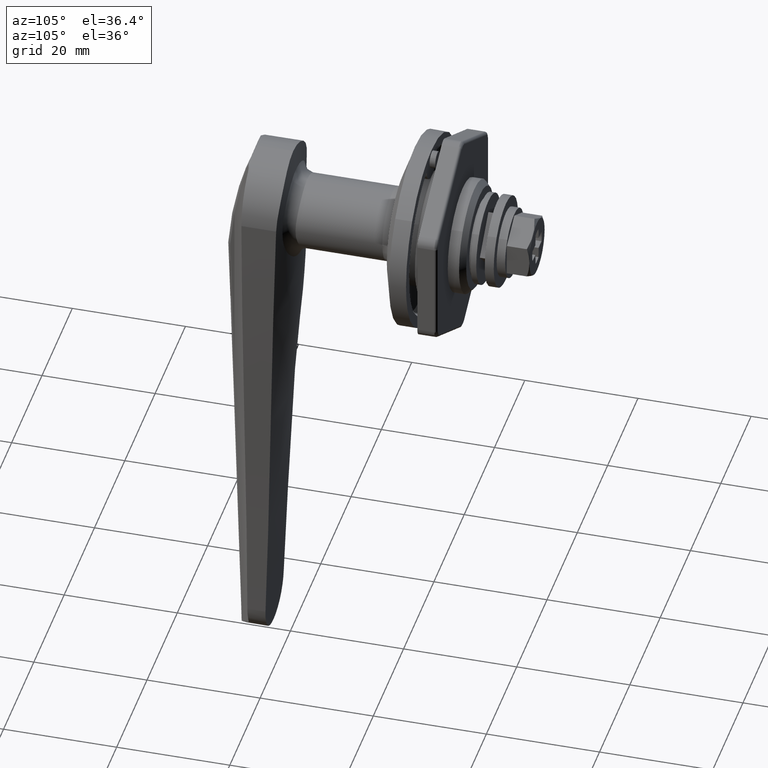
[diagram: clean part render]
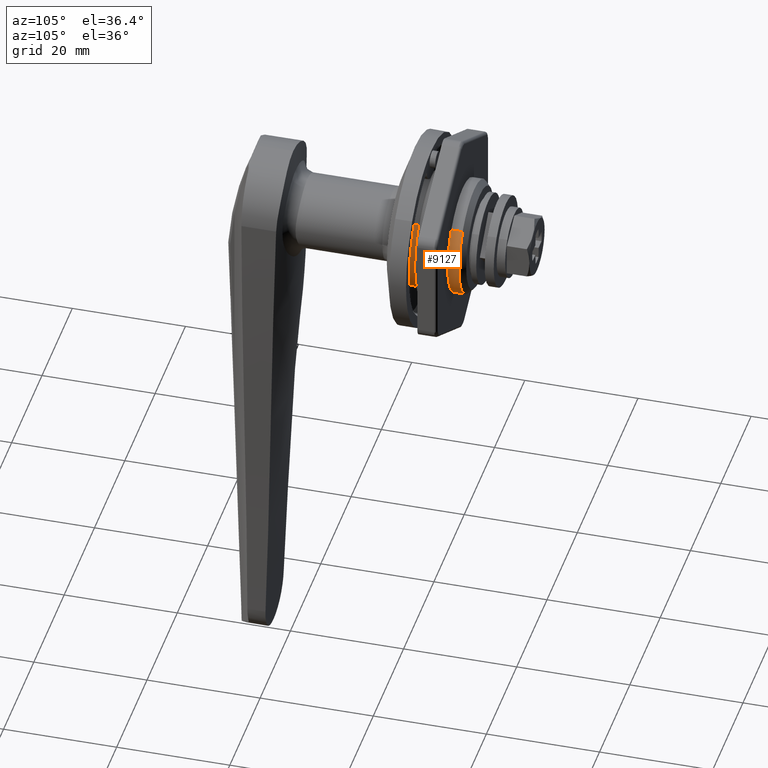
[diagram: same view with one face highlighted and labeled with its STEP entity id]
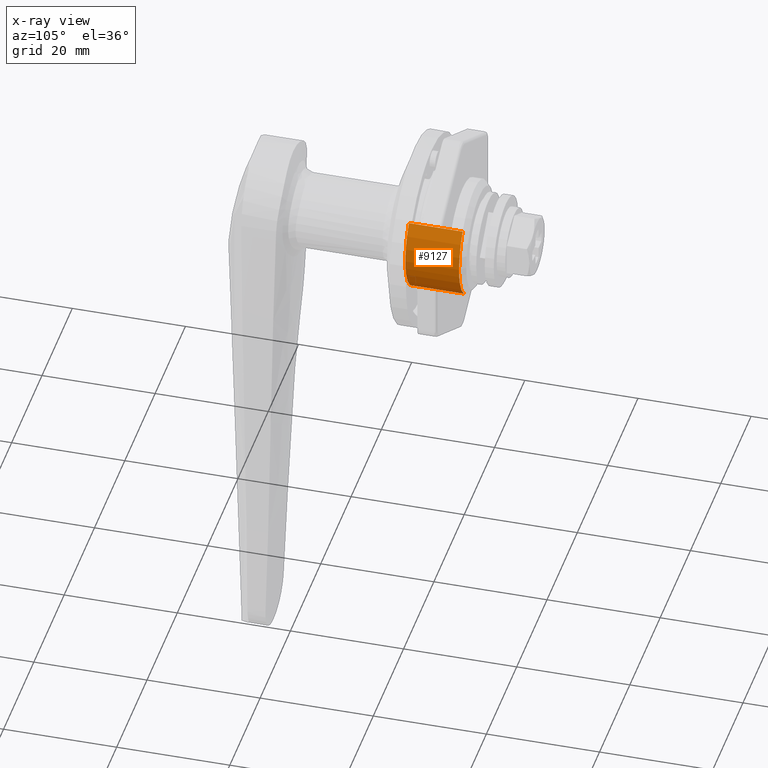
[diagram: x-ray of the same camera — body ghosted, the highlighted face saturated]
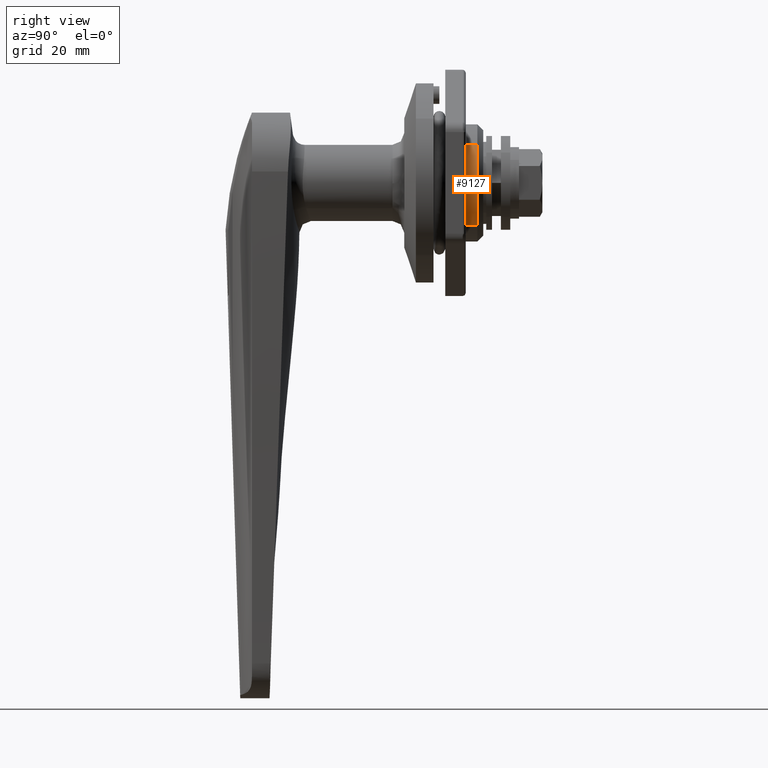
[diagram: same view with one face highlighted and labeled with its STEP entity id]
A machine part, auxiliary view. The second image highlights one B-rep face of the part: STEP entity #9127.
The next image is the same camera in x-ray: the body ghosted, the highlighted face saturated — about 0% of this face is hidden behind the body in this view.
A second angle (right view) of the same face is appended — the face is thin or edge-on in the first view.
In plain terms, the highlighted face is a freeform B-spline surface patch.
Its self-contained STEP definition (entity closure, byte-faithful):
#8837=CARTESIAN_POINT('',(12.500000106081540,-6.883545521679087,-7.253743494632427));
#8838=VERTEX_POINT('',#8837);
#8904=CARTESIAN_POINT('',(12.500000000003009,-7.635556701499612,6.457420710982888));
#8905=VERTEX_POINT('',#8904);
#8916=CARTESIAN_POINT('',(12.500000000000000,-9.999999999999856,0.000001699681016));
#8917=VERTEX_POINT('',#8916);
#8918=CARTESIAN_POINT('',(12.500000000000000,-9.999999999999856,0.000001699681016));
#8919=CARTESIAN_POINT('',(12.500000000000350,-10.000143969370090,0.767822913583135));
#8920=CARTESIAN_POINT('',(12.500000000001011,-9.851880347634451,2.047423754769786));
#8921=CARTESIAN_POINT('',(12.500000000001680,-9.341854889605529,3.655304523473791));
#8922=CARTESIAN_POINT('',(12.500000000002389,-8.664958801899514,5.077473418332906));
#8923=CARTESIAN_POINT('',(12.500000000002769,-8.060612721584633,5.954964163026675));
#8924=CARTESIAN_POINT('',(12.500000000003009,-7.635556701499612,6.457420710982888));
#8925=B_SPLINE_CURVE_WITH_KNOTS('',3,(#8918,#8919,#8920,#8921,#8922,#8923,#8924),.UNSPECIFIED.,.F.,.U.,(4,1,1,1,4),(0.000000019802665,2.303437828238395,3.839036128374377,5.045610449227490,7.019980750849748),.UNSPECIFIED.);
#8926=EDGE_CURVE('',#8917,#8905,#8925,.T.);
#8928=CARTESIAN_POINT('',(12.500000106081540,-6.883545521679087,-7.253743494632427));
#8929=CARTESIAN_POINT('',(12.500000098848810,-7.404868546408102,-6.759178369232989));
#8930=CARTESIAN_POINT('',(12.500000084152269,-8.257631513626002,-5.754240637470032));
#8931=CARTESIAN_POINT('',(12.500000061910759,-9.102742283626993,-4.233394234037530));
#8932=CARTESIAN_POINT('',(12.500000034614519,-9.794934777318186,-2.366899613877269));
#8933=CARTESIAN_POINT('',(12.500000014218770,-10.000422382396479,-0.972265137666062));
#8934=CARTESIAN_POINT('',(12.500000000000000,-9.999999999999856,0.000001699681016));
#8935=B_SPLINE_CURVE_WITH_KNOTS('',3,(#8928,#8929,#8930,#8931,#8932,#8933,#8934),.UNSPECIFIED.,.F.,.U.,(4,1,1,1,4),(0.000000017236736,2.155770831149876,3.931116128828230,5.199201988351774,8.115836988922343),.UNSPECIFIED.);
#8936=EDGE_CURVE('',#8838,#8917,#8935,.T.);
#9011=CARTESIAN_POINT('',(3.0,-6.883545432851502,-7.253743432677419));
#9012=VERTEX_POINT('',#9011);
#9013=CARTESIAN_POINT('',(12.500000106081540,-6.883545521679087,-7.253743494632427));
#9014=CARTESIAN_POINT('',(3.0,-6.883545432851502,-7.253743432677419));
#9015=QUASI_UNIFORM_CURVE('',1,(#9013,#9014),.UNSPECIFIED.,.F.,.U.);
#9016=EDGE_CURVE('',#8838,#9012,#9015,.T.);
#9064=CARTESIAN_POINT('',(3.000000000000001,-7.635556702086495,6.457420710288930));
#9065=VERTEX_POINT('',#9064);
#9076=CARTESIAN_POINT('',(12.500000000003009,-7.635556701499612,6.457420710982888));
#9077=CARTESIAN_POINT('',(3.000000000000001,-7.635556702086495,6.457420710288930));
#9078=QUASI_UNIFORM_CURVE('',1,(#9076,#9077),.UNSPECIFIED.,.F.,.U.);
#9079=EDGE_CURVE('',#8905,#9065,#9078,.T.);
#9084=CARTESIAN_POINT('',(12.737500000000001,-6.883545756937537,-7.253743710122873));
#9085=CARTESIAN_POINT('',(12.737500000000001,-13.733643581750693,-0.753243595844516));
#9086=CARTESIAN_POINT('',(12.737500000000002,-7.635556429404647,6.457420383820254));
#9087=CARTESIAN_POINT('',(2.756562500000001,-6.883545756937537,-7.253743710122873));
#9088=CARTESIAN_POINT('',(2.756562500000002,-13.733643581750693,-0.753243595844516));
#9089=CARTESIAN_POINT('',(2.756562500000002,-7.635556429404647,6.457420383820254));
#9097=(BOUNDED_SURFACE()B_SPLINE_SURFACE(2,1,((#9084,#9087),(#9085,#9088),(#9086,#9089)),.UNSPECIFIED.,.F.,.F.,.U.)B_SPLINE_SURFACE_WITH_KNOTS((3,3),(2,2),(0.0,15.901435587087899),(0.0,9.980937500000001),.UNSPECIFIED.)GEOMETRIC_REPRESENTATION_ITEM()RATIONAL_B_SPLINE_SURFACE(((1.0,1.0),(0.718822509939086,0.718822509939086),(0.977505800795127,0.977505800795127)))REPRESENTATION_ITEM('')SURFACE());
#9098=ORIENTED_EDGE('',*,*,#8926,.T.);
#9099=ORIENTED_EDGE('',*,*,#9079,.T.);
#9100=CARTESIAN_POINT('',(3.0,-9.999999999999856,0.000001699681016));
#9101=VERTEX_POINT('',#9100);
#9102=CARTESIAN_POINT('',(3.0,-9.999999999999856,0.000001699681016));
#9103=CARTESIAN_POINT('',(3.0,-10.000023893047549,0.511872975002661));
#9104=CARTESIAN_POINT('',(3.000000000000001,-9.918429961895392,1.572178323815064));
#9105=CARTESIAN_POINT('',(2.999999999999994,-9.566993097746973,3.034668342145510));
#9106=CARTESIAN_POINT('',(3.000000000000013,-8.880839950440119,4.733424786607236));
#9107=CARTESIAN_POINT('',(3.0,-8.178777516615524,5.815449986635521));
#9108=CARTESIAN_POINT('',(3.000000000000001,-7.635556702086495,6.457420710288930));
#9109=B_SPLINE_CURVE_WITH_KNOTS('',3,(#9102,#9103,#9104,#9105,#9106,#9107,#9108),.UNSPECIFIED.,.F.,.U.,(4,1,1,1,4),(0.000000019803421,1.535620083505372,3.180944641841730,4.497173687487342,7.019980749940885),.UNSPECIFIED.);
#9110=EDGE_CURVE('',#9101,#9065,#9109,.T.);
#9111=ORIENTED_EDGE('',*,*,#9110,.F.);
#9112=CARTESIAN_POINT('',(3.0,-6.883545432851502,-7.253743432677419));
#9113=CARTESIAN_POINT('',(3.0,-7.404878861313352,-6.759180686907890));
#9114=CARTESIAN_POINT('',(3.0,-8.257615455757906,-5.754238785576553));
#9115=CARTESIAN_POINT('',(3.000000000000003,-9.061536798214217,-4.307586128939041));
#9116=CARTESIAN_POINT('',(3.000000000000002,-9.578879907924451,-2.964769954735812));
#9117=CARTESIAN_POINT('',(3.000000000000004,-9.912668887995558,-1.606239458835105));
#9118=CARTESIAN_POINT('',(2.999999999999998,-10.000045010397740,-0.549505961978027));
#9119=CARTESIAN_POINT('',(3.0,-9.999999999999856,0.000001699681016));
#9120=B_SPLINE_CURVE_WITH_KNOTS('',3,(#9112,#9113,#9114,#9115,#9116,#9117,#9118,#9119),.UNSPECIFIED.,.F.,.U.,(4,1,1,1,1,4),(0.000000017237987,2.155770825500965,3.931116118533422,4.945575325359460,6.467310935264749,8.115836967660419),.UNSPECIFIED.);
#9121=EDGE_CURVE('',#9012,#9101,#9120,.T.);
#9122=ORIENTED_EDGE('',*,*,#9121,.F.);
#9123=ORIENTED_EDGE('',*,*,#9016,.F.);
#9124=ORIENTED_EDGE('',*,*,#8936,.T.);
#9125=EDGE_LOOP('',(#9098,#9099,#9111,#9122,#9123,#9124));
#9126=FACE_OUTER_BOUND('',#9125,.T.);
#9127=ADVANCED_FACE('',(#9126),#9097,.T.);